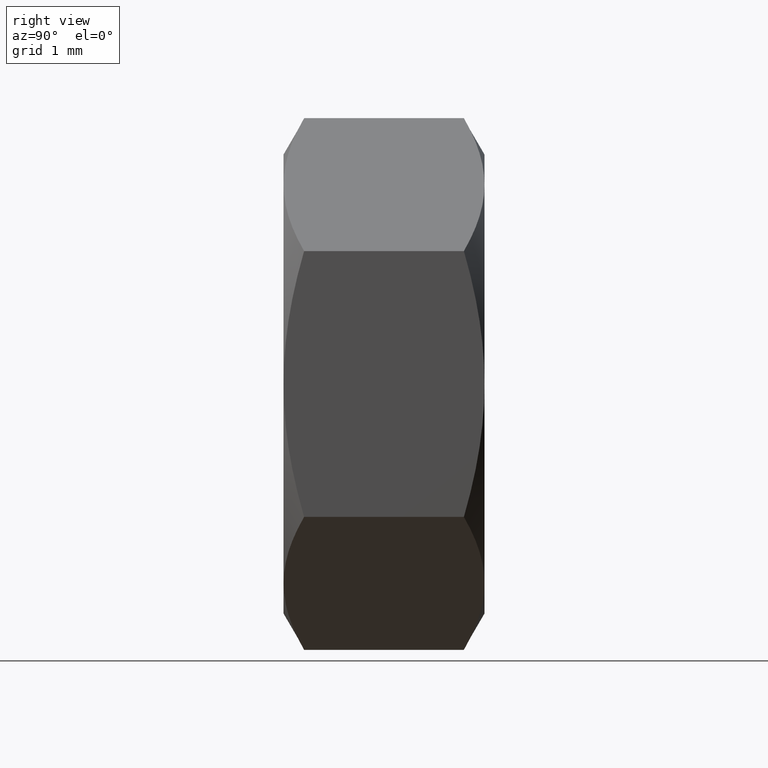
[diagram: clean part render]
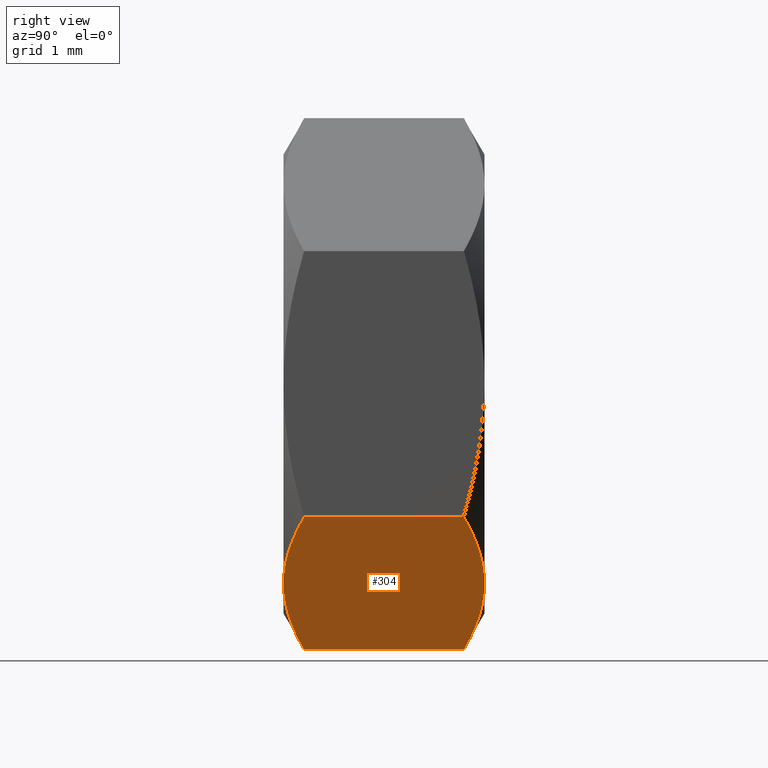
[diagram: same view with one face highlighted and labeled with its STEP entity id]
A machine part, right view. The second image highlights one B-rep face of the part: STEP entity #304.
In plain terms, the highlighted planar face has unit normal (-0.5, 0, 0.866).
Its self-contained STEP definition (entity closure, byte-faithful):
#23=PLANE('',#348);
#26=LINE('',#486,#33);
#31=LINE('',#548,#38);
#33=VECTOR('',#396,1000.);
#38=VECTOR('',#409,1000.);
#49=FACE_OUTER_BOUND('',#71,.T.);
#71=EDGE_LOOP('',(#240,#241,#242,#243,#244,#245));
#104=(
BOUNDED_CURVE()
B_SPLINE_CURVE(2,(#557,#558,#559),.UNSPECIFIED.,.F.,.F.)
B_SPLINE_CURVE_WITH_KNOTS((3,3),(-1.21715266222542,-0.886731921730228),
 .UNSPECIFIED.)
CURVE()
GEOMETRIC_REPRESENTATION_ITEM()
RATIONAL_B_SPLINE_CURVE((1.92205114401651,2.07072231740622,2.07072231740622))
REPRESENTATION_ITEM('')
);
#105=(
BOUNDED_CURVE()
B_SPLINE_CURVE(2,(#560,#561,#562),.UNSPECIFIED.,.F.,.F.)
B_SPLINE_CURVE_WITH_KNOTS((3,3),(-0.886731921730228,-0.556311181235029),
 .UNSPECIFIED.)
CURVE()
GEOMETRIC_REPRESENTATION_ITEM()
RATIONAL_B_SPLINE_CURVE((2.07072231740622,2.07072231740622,1.92205114401651))
REPRESENTATION_ITEM('')
);
#106=(
BOUNDED_CURVE()
B_SPLINE_CURVE(2,(#563,#564,#565),.UNSPECIFIED.,.F.,.F.)
B_SPLINE_CURVE_WITH_KNOTS((3,3),(0.88673192173023,1.21715266222543),
 .UNSPECIFIED.)
CURVE()
GEOMETRIC_REPRESENTATION_ITEM()
RATIONAL_B_SPLINE_CURVE((2.07072231740622,2.07072231740622,1.92205114401651))
REPRESENTATION_ITEM('')
);
#107=(
BOUNDED_CURVE()
B_SPLINE_CURVE(2,(#566,#567,#568),.UNSPECIFIED.,.F.,.F.)
B_SPLINE_CURVE_WITH_KNOTS((3,3),(0.556311181235032,0.88673192173023),
 .UNSPECIFIED.)
CURVE()
GEOMETRIC_REPRESENTATION_ITEM()
RATIONAL_B_SPLINE_CURVE((1.92205114401651,2.07072231740622,2.07072231740622))
REPRESENTATION_ITEM('')
);
#131=VERTEX_POINT('',#476);
#134=VERTEX_POINT('',#484);
#135=VERTEX_POINT('',#485);
#145=VERTEX_POINT('',#543);
#146=VERTEX_POINT('',#547);
#147=VERTEX_POINT('',#556);
#162=EDGE_CURVE('',#134,#135,#26,.T.);
#181=EDGE_CURVE('',#146,#145,#31,.T.);
#184=EDGE_CURVE('',#145,#147,#104,.T.);
#185=EDGE_CURVE('',#147,#135,#105,.T.);
#186=EDGE_CURVE('',#131,#134,#106,.T.);
#187=EDGE_CURVE('',#146,#131,#107,.T.);
#240=ORIENTED_EDGE('',*,*,#181,.T.);
#241=ORIENTED_EDGE('',*,*,#184,.T.);
#242=ORIENTED_EDGE('',*,*,#185,.T.);
#243=ORIENTED_EDGE('',*,*,#162,.F.);
#244=ORIENTED_EDGE('',*,*,#186,.F.);
#245=ORIENTED_EDGE('',*,*,#187,.F.);
#304=ADVANCED_FACE('',(#49),#23,.F.);
#348=AXIS2_PLACEMENT_3D('',#555,#410,#411);
#396=DIRECTION('',(0.,-1.,0.));
#409=DIRECTION('',(0.,-1.,0.));
#410=DIRECTION('center_axis',(-0.5,0.,0.866025403784439));
#411=DIRECTION('ref_axis',(0.866025403784439,0.,0.5));
#476=CARTESIAN_POINT('',(1.37500000000001,1.2,-2.38156986040722));
#484=CARTESIAN_POINT('',(3.81099500422768E-15,0.954379906938133,-3.17542648054295));
#485=CARTESIAN_POINT('',(3.73483871489855E-15,-0.954379906938133,-3.17542648054295));
#486=CARTESIAN_POINT('',(3.73483871489855E-15,1.2,-3.17542648054295));
#543=CARTESIAN_POINT('',(2.75,-0.954379906938137,-1.58771324027149));
#547=CARTESIAN_POINT('',(2.75,0.954379906938137,-1.58771324027149));
#548=CARTESIAN_POINT('',(2.75,1.2,-1.58771324027149));
#555=CARTESIAN_POINT('Origin',(2.75,1.2,-1.58771324027149));
#556=CARTESIAN_POINT('',(1.375,-1.2,-2.38156986040721));
#557=CARTESIAN_POINT('Ctrl Pts',(2.75000000001884,-0.954379906931856,-1.58771324026061));
#558=CARTESIAN_POINT('Ctrl Pts',(2.01313972082198,-1.19999999999999,-2.01313972081005));
#559=CARTESIAN_POINT('Ctrl Pts',(1.375,-1.19999999999999,-2.38156986040722));
#560=CARTESIAN_POINT('Ctrl Pts',(1.375,-1.19999999999999,-2.38156986040722));
#561=CARTESIAN_POINT('Ctrl Pts',(0.736860279178016,-1.19999999999999,-2.75000000000438));
#562=CARTESIAN_POINT('Ctrl Pts',(-1.88401335821467E-11,-0.954379906931851,
-3.17542648055383));
#563=CARTESIAN_POINT('Ctrl Pts',(1.375,1.19999999999999,-2.38156986040722));
#564=CARTESIAN_POINT('Ctrl Pts',(0.736860279178017,1.19999999999999,-2.75000000000438));
#565=CARTESIAN_POINT('Ctrl Pts',(-1.88410577806754E-11,0.954379906931851,
-3.17542648055383));
#566=CARTESIAN_POINT('Ctrl Pts',(2.75000000001884,0.954379906931856,-1.58771324026061));
#567=CARTESIAN_POINT('Ctrl Pts',(2.01313972082199,1.19999999999999,-2.01313972081005));
#568=CARTESIAN_POINT('Ctrl Pts',(1.375,1.19999999999999,-2.38156986040722));